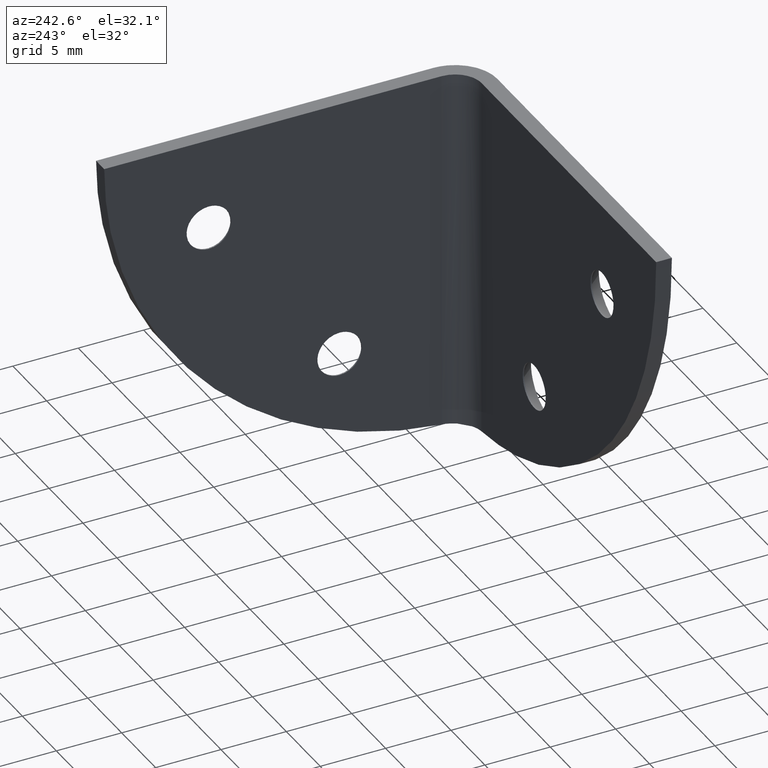
[diagram: clean part render]
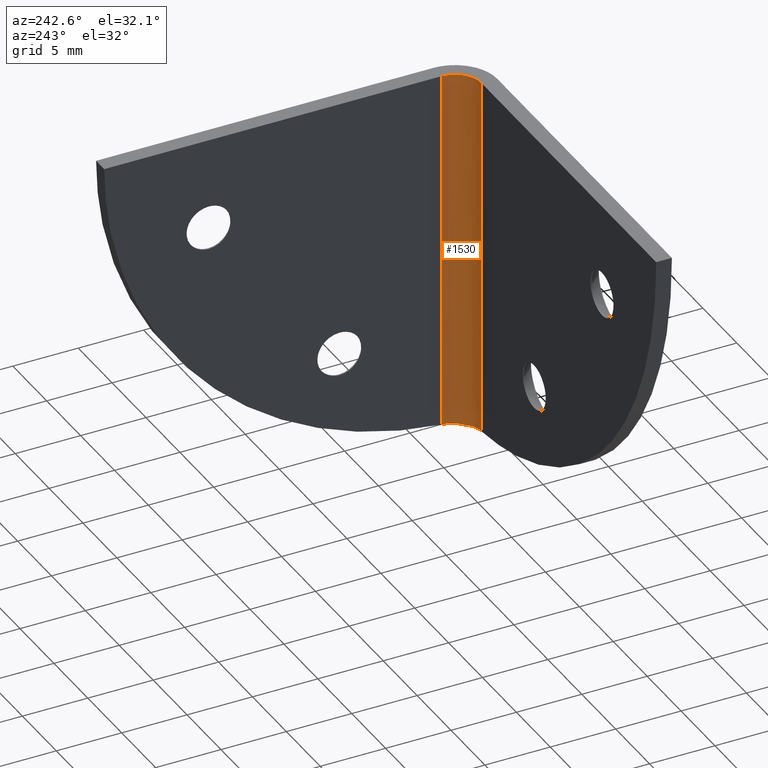
[diagram: same view with one face highlighted and labeled with its STEP entity id]
A machine part, auxiliary view. The second image highlights one B-rep face of the part: STEP entity #1530.
In plain terms, the highlighted face is a freeform B-spline surface patch.
Its self-contained STEP definition (entity closure, byte-faithful):
#1447=CARTESIAN_POINT('',(-1.200685350048991,3.252353896615650,-0.689427894704778));
#1448=CARTESIAN_POINT('',(-1.200685350048991,3.252353896615650,28.717235697367620));
#1449=CARTESIAN_POINT('',(-1.143551097608123,1.070484822811664,-0.689427894704778));
#1450=CARTESIAN_POINT('',(-1.143551097608123,1.070484822811664,28.717235697367631));
#1451=CARTESIAN_POINT('',(-3.322097079069816,1.203730403156166,-0.689427894704778));
#1452=CARTESIAN_POINT('',(-3.322097079069816,1.203730403156166,28.717235697367620));
#1460=(BOUNDED_SURFACE()B_SPLINE_SURFACE(1,2,((#1447,#1449,#1451),(#1448,#1450,#1452)),.UNSPECIFIED.,.F.,.F.,.U.)B_SPLINE_SURFACE_WITH_KNOTS((2,2),(3,3),(0.0,29.406663592072402),(0.0,3.520084247134667),.UNSPECIFIED.)GEOMETRIC_REPRESENTATION_ITEM()RATIONAL_B_SPLINE_SURFACE(((1.0,0.675590207615660,1.0),(1.0,0.675590207615660,1.0)))REPRESENTATION_ITEM('')SURFACE());
#1461=CARTESIAN_POINT('',(-3.200000000000105,1.199999999999868,0.085848375801886));
#1462=VERTEX_POINT('',#1461);
#1463=CARTESIAN_POINT('',(-1.785786437626910,1.785786437626900,0.010314249068510));
#1464=VERTEX_POINT('',#1463);
#1465=CARTESIAN_POINT('',(-3.200000000000105,1.199999999999868,0.085848375801886));
#1466=CARTESIAN_POINT('',(-3.068242490280015,1.199999999999900,0.075463896280344));
#1467=CARTESIAN_POINT('',(-2.938602821358960,1.212893334163775,0.066184332640620));
#1468=CARTESIAN_POINT('',(-2.747205749415718,1.250844358897655,0.053779035843623));
#1469=CARTESIAN_POINT('',(-2.683920971352114,1.266619299524387,0.049896706993422));
#1470=CARTESIAN_POINT('',(-2.558406945128220,1.304569481958787,0.042617395118511));
#1471=CARTESIAN_POINT('',(-2.496006326967684,1.326852351030470,0.039213804270085));
#1472=CARTESIAN_POINT('',(-2.314451315289150,1.401956520813645,0.029893689426647));
#1473=CARTESIAN_POINT('',(-2.199585297139818,1.463266212024524,0.024782683094007));
#1474=CARTESIAN_POINT('',(-2.036486655873342,1.571962790647006,0.018423690371815));
#1475=CARTESIAN_POINT('',(-1.983548427219093,1.611099530830848,0.016519095039905));
#1476=CARTESIAN_POINT('',(-1.881405976889821,1.694786084283976,0.013115581918178));
#1477=CARTESIAN_POINT('',(-1.832507228586972,1.739065646666832,0.011625928690694));
#1478=CARTESIAN_POINT('',(-1.785786437626910,1.785786437626900,0.010314249068509));
#1479=B_SPLINE_CURVE_WITH_KNOTS('',3,(#1465,#1466,#1467,#1468,#1469,#1470,#1471,#1472,#1473,#1474,#1475,#1476,#1477,#1478),.UNSPECIFIED.,.F.,.U.,(4,2,2,2,2,2,4),(0.0,0.250000000000000,0.375000000000000,0.499999999999999,0.750000000000000,0.875000000000000,1.0),.UNSPECIFIED.);
#1480=EDGE_CURVE('',#1462,#1464,#1479,.T.);
#1481=ORIENTED_EDGE('',*,*,#1480,.F.);
#1482=CARTESIAN_POINT('',(-3.200000000000105,1.199999999999900,28.0));
#1483=VERTEX_POINT('',#1482);
#1484=CARTESIAN_POINT('',(-3.200000000000105,1.199999999999900,28.0));
#1485=CARTESIAN_POINT('',(-3.200000000000105,1.199999999999868,0.085848375801886));
#1486=QUASI_UNIFORM_CURVE('',1,(#1484,#1485),.UNSPECIFIED.,.F.,.U.);
#1487=EDGE_CURVE('',#1483,#1462,#1486,.T.);
#1488=ORIENTED_EDGE('',*,*,#1487,.F.);
#1489=CARTESIAN_POINT('',(-1.200000000000102,3.199999999999900,28.0));
#1490=VERTEX_POINT('',#1489);
#1491=CARTESIAN_POINT('',(-1.200000000000105,3.199999999999900,28.0));
#1492=CARTESIAN_POINT('',(-1.200000000000105,1.199999999999900,27.999999999999996));
#1493=CARTESIAN_POINT('',(-3.200000000000105,1.199999999999900,28.0));
#1501=(BOUNDED_CURVE()B_SPLINE_CURVE(2,(#1491,#1492,#1493),.UNSPECIFIED.,.F.,.U.)CURVE()GEOMETRIC_REPRESENTATION_ITEM()QUASI_UNIFORM_CURVE()RATIONAL_B_SPLINE_CURVE((1.0,0.707106781186548,1.0))REPRESENTATION_ITEM(''));
#1502=EDGE_CURVE('',#1490,#1483,#1501,.T.);
#1503=ORIENTED_EDGE('',*,*,#1502,.F.);
#1504=CARTESIAN_POINT('',(-1.200000000000090,3.199999999999900,0.085848375801868));
#1505=VERTEX_POINT('',#1504);
#1506=CARTESIAN_POINT('',(-1.200000000000090,3.199999999999900,0.085848375801868));
#1507=CARTESIAN_POINT('',(-1.200000000000102,3.199999999999900,28.0));
#1508=QUASI_UNIFORM_CURVE('',1,(#1506,#1507),.UNSPECIFIED.,.F.,.U.);
#1509=EDGE_CURVE('',#1505,#1490,#1508,.T.);
#1510=ORIENTED_EDGE('',*,*,#1509,.F.);
#1511=CARTESIAN_POINT('',(-1.785786437626910,1.785786437626900,0.010314249068510));
#1512=CARTESIAN_POINT('',(-1.692347485766428,1.879225389487393,0.012937534474327));
#1513=CARTESIAN_POINT('',(-1.609652425871361,1.980259897825600,0.016240445500933));
#1514=CARTESIAN_POINT('',(-1.501059186493662,2.142719080352989,0.022561207835515));
#1515=CARTESIAN_POINT('',(-1.467455418228110,2.198703556751185,0.024896572914424));
#1516=CARTESIAN_POINT('',(-1.405551791113649,2.314414927455081,0.030094602433847));
#1517=CARTESIAN_POINT('',(-1.377210727755570,2.374331785662485,0.032969067320925));
#1518=CARTESIAN_POINT('',(-1.302046865535497,2.555850309257508,0.042283078375492));
#1519=CARTESIAN_POINT('',(-1.264282846590411,2.680359935677270,0.049458939190281));
#1520=CARTESIAN_POINT('',(-1.225951124604207,2.872299357398103,0.061880865003358));
#1521=CARTESIAN_POINT('',(-1.216233063530607,2.937306720223669,0.066309759927903));
#1522=CARTESIAN_POINT('',(-1.203247023375074,3.068407569335178,0.075711567564366));
#1523=CARTESIAN_POINT('',(-1.200000000000102,3.134121931038078,0.080656190100230));
#1524=CARTESIAN_POINT('',(-1.200000000000090,3.199999999999900,0.085848375801868));
#1525=B_SPLINE_CURVE_WITH_KNOTS('',3,(#1511,#1512,#1513,#1514,#1515,#1516,#1517,#1518,#1519,#1520,#1521,#1522,#1523,#1524),.UNSPECIFIED.,.F.,.U.,(4,2,2,2,2,2,4),(0.0,0.250000000000000,0.375000000000001,0.500000000000001,0.750000000000000,0.875000000000000,1.0),.UNSPECIFIED.);
#1526=EDGE_CURVE('',#1464,#1505,#1525,.T.);
#1527=ORIENTED_EDGE('',*,*,#1526,.F.);
#1528=EDGE_LOOP('',(#1481,#1488,#1503,#1510,#1527));
#1529=FACE_OUTER_BOUND('',#1528,.T.);
#1530=ADVANCED_FACE('',(#1529),#1460,.F.);